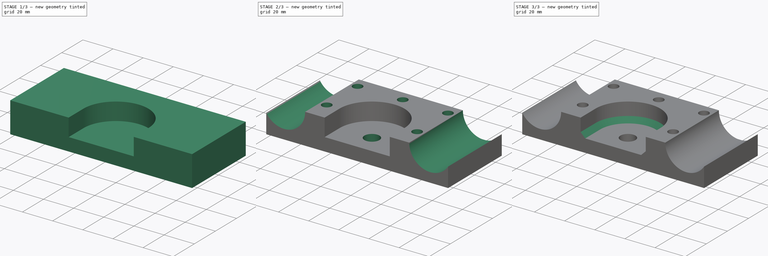
[diagram: build sequence overview — one tinted view per stage of 3, left to right]
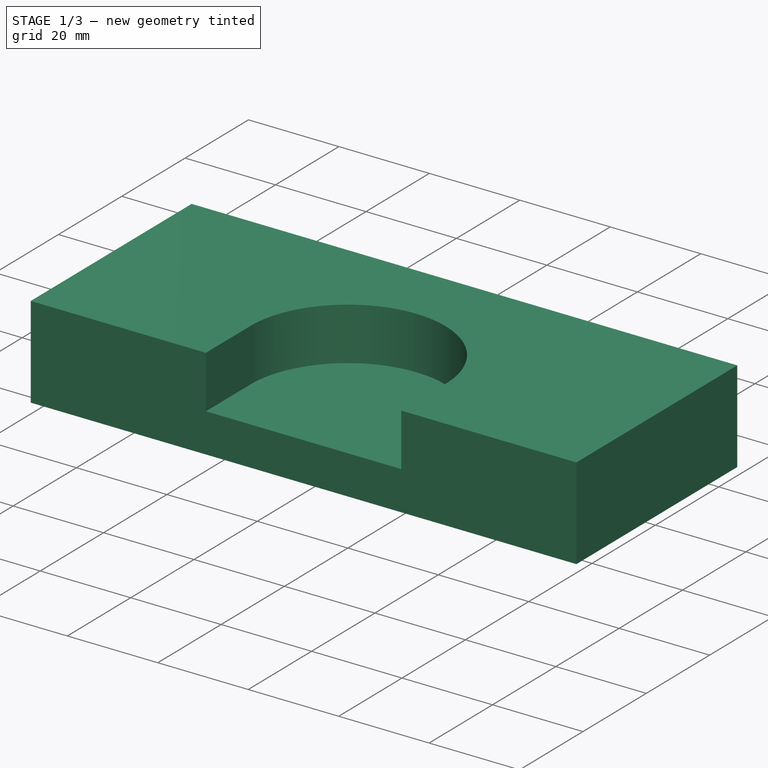
[diagram: stage 1 of 3 — iso view after this stage's code; geometry added in this stage tinted green]
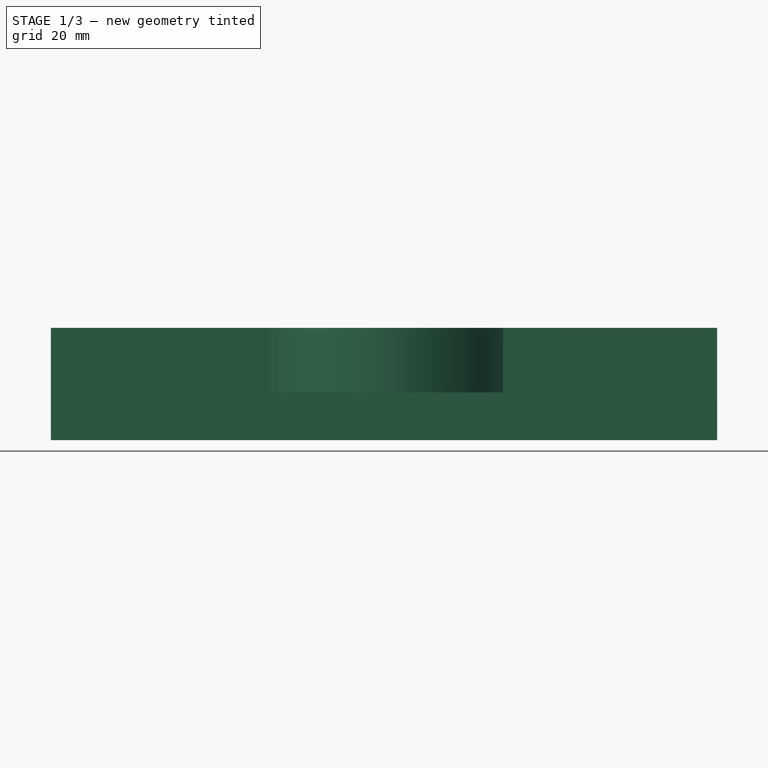
[diagram: stage 1 of 3 — front view after this stage's code; geometry added in this stage tinted green]
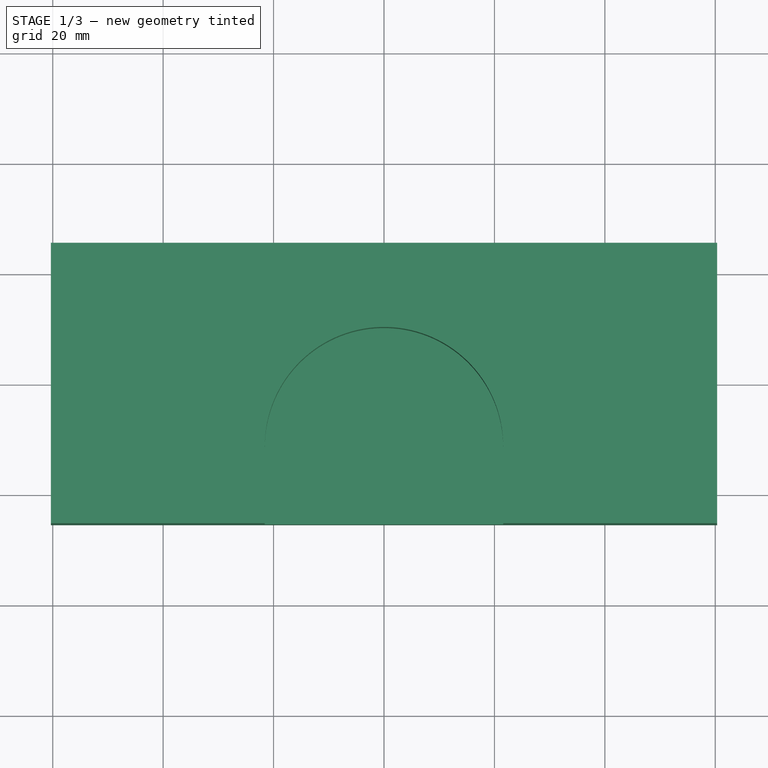
[diagram: stage 1 of 3 — top view after this stage's code; geometry added in this stage tinted green]
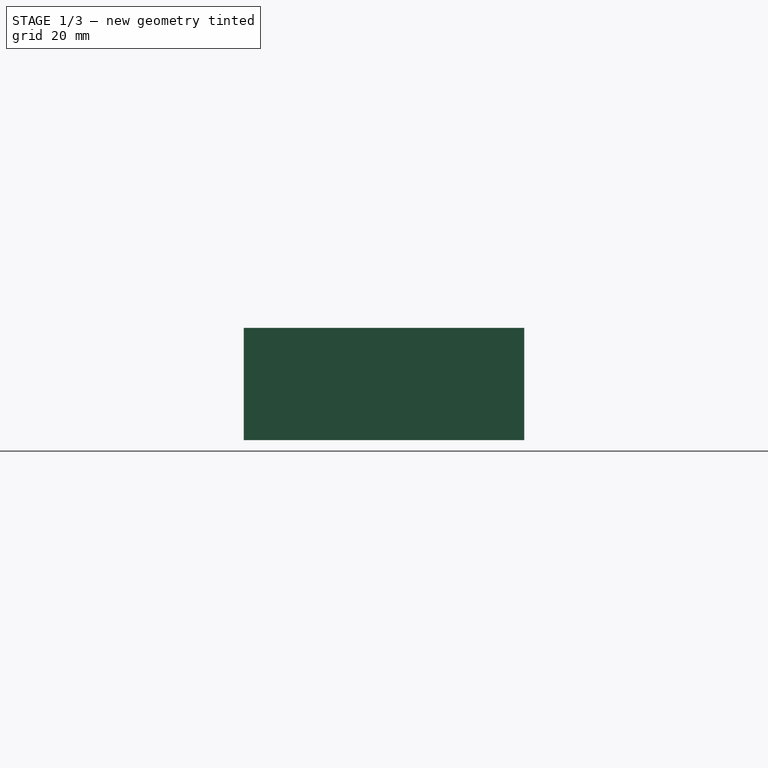
[diagram: stage 1 of 3 — right view after this stage's code; geometry added in this stage tinted green]
FCSTD DOCUMENT  (FreeCAD 0.18R16131 (Git))
Label: TorchIdlerNarrow
License: All rights reserved
LicenseURL: http://en.wikipedia.org/wiki/All_rights_reserved
objects: Sketcher::SketchObject×5, PartDesign::Pocket×4, Spreadsheet::Sheet×1, PartDesign::Pad×1, PartDesign::Chamfer×1
note: 16 computed .brp shape members not serialized (recipe doc carries the construction recipe); baked Part::Feature solids carry a one-line shape summary decoded from their .brp

FEATURE [Spreadsheet::Sheet] Spreadsheet  label="p"
  cells = A1=Description; B1=Dimensions (inches); C1=Dimension (mm); A2=Bushing wall thickness; C2(bushing_wall_th)=2
FEATURE [Sketcher::SketchObject] Sketch  label="IdlerBodySketch"
  MapMode = 5
  Support = -> [XY_Plane]
  sketch-geometry (4):
    g0: LineSegment StartX=-60.325 StartY=25.4 StartZ=0 EndX=60.325 EndY=25.4 EndZ=0
    g1: LineSegment StartX=60.325 StartY=25.4 StartZ=0 EndX=60.325 EndY=-25.4 EndZ=0
    g2: LineSegment StartX=60.325 StartY=-25.4 StartZ=0 EndX=-60.325 EndY=-25.4 EndZ=0
    g3: LineSegment StartX=-60.325 StartY=-25.4 StartZ=0 EndX=-60.325 EndY=25.4 EndZ=0
  constraints (10):
    c: Coincident(g0,g1)
    c: Coincident(g1,g2)
    c: Coincident(g2,g3)
    c: Coincident(g3,g0)
    c: Horizontal(g2)
    c: Vertical(g1)
    c: Symmetric(g0,g0,g-2)
    c: Symmetric(g0,g2,g-1)
    c: DistanceX(g0,g0) = 120.65
    c: DistanceY(g1,g1) = 50.8
FEATURE [PartDesign::Pad] Pad  label="IdlerBodyPad"
  Length = 20.32
  Length2 = 100.076
  Profile = -> Sketch
  Type = 0
FEATURE [Sketcher::SketchObject] Sketch001  label="BeltGrooveSketch"
  ExternalGeometry = -> [Pad]
  MapMode = 5
  Placement = pos=(0,0,20.32) rot=(0,0,1;0rad)
  Support = -> [Pad]
  sketch-geometry (5):
    g0: LineSegment StartX=21.59 StartY=-11.43 StartZ=0 EndX=21.59 EndY=-25.4 EndZ=0
    g1: LineSegment StartX=21.59 StartY=-25.4 StartZ=0 EndX=-21.59 EndY=-25.4 EndZ=0
    g2: LineSegment StartX=-21.59 StartY=-25.4 StartZ=0 EndX=-21.59 EndY=-11.43 EndZ=0
    g3: GeomPoint X=5.477e-13 Y=10.16 Z=0
    g4: ArcOfCircle CenterX=5.3018e-12 CenterY=-11.43 CenterZ=0 NormalX=0 NormalY=0 NormalZ=1 AngleXU=0 Radius=21.59 StartAngle=4.9606e-12 EndAngle=3.14159
  constraints (14):
    c: Coincident(g0,g1)
    c: Coincident(g1,g2)
    c: Horizontal(g1)
    c: Vertical(g0)
    c: Vertical(g2)
    c: DistanceX(g2,g0) = 43.18
    c: Symmetric(g2,g0,g-2)
    c: Horizontal(g1,g-3)
    c: PointOnObject(g3,g-2)
    c: DistanceY(g3,g-4) = 15.24
    c: PointOnObject(g3,g4)
    c: Coincident(g0,g4)
    c: Coincident(g2,g4)
    c: Horizontal(g2,g4)
FEATURE [PartDesign::Pocket] Pocket  label="BeltGroovePocket"
  BaseFeature = -> Pad
  Length = 11.684
  Length2 = 100.076
  Profile = -> Sketch001
  Type = 0
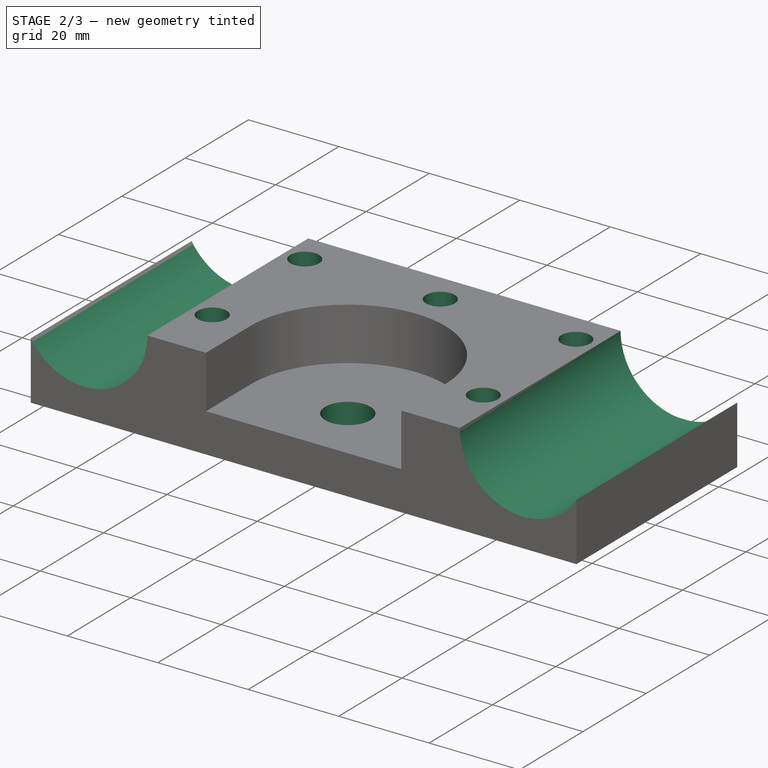
[diagram: stage 2 of 3 — iso view after this stage's code; geometry added in this stage tinted green]
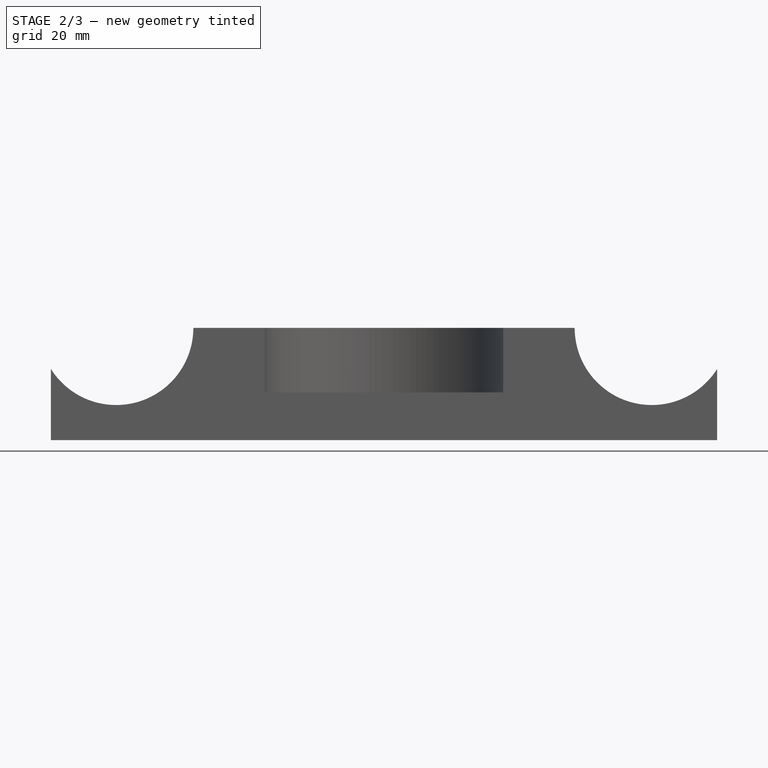
[diagram: stage 2 of 3 — front view after this stage's code; geometry added in this stage tinted green]
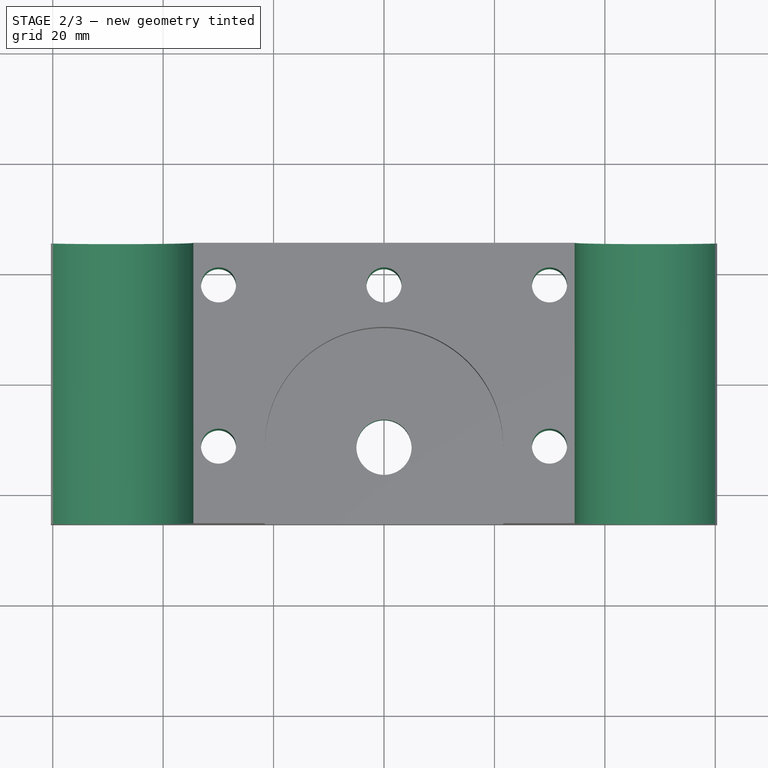
[diagram: stage 2 of 3 — top view after this stage's code; geometry added in this stage tinted green]
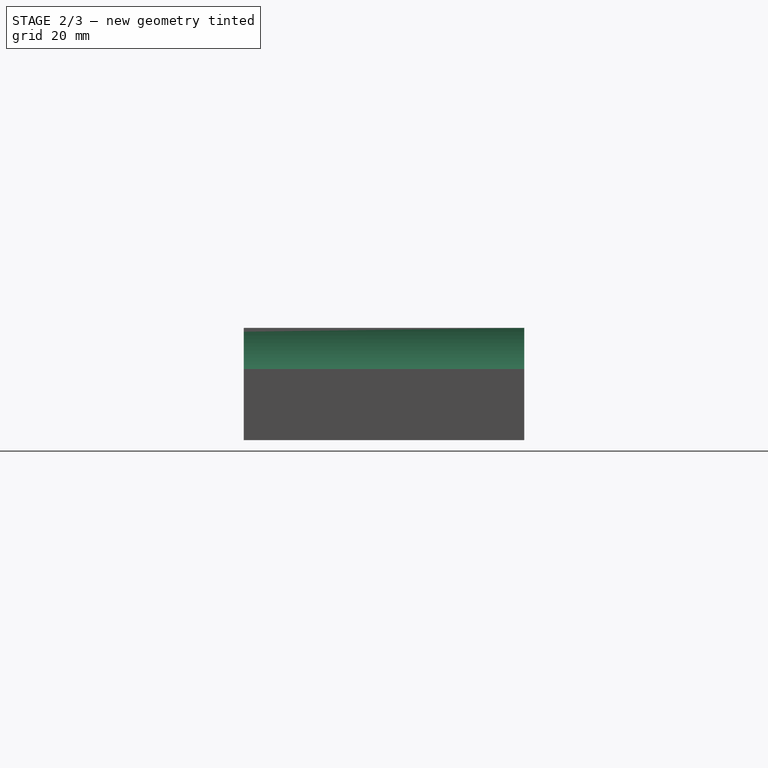
[diagram: stage 2 of 3 — right view after this stage's code; geometry added in this stage tinted green]
FEATURE [Sketcher::SketchObject] Sketch002  label="1inRodSketch"
  ExternalGeometry = -> [Pocket]
  MapMode = 5
  Placement = pos=(0,-25.4,0) rot=(1,0,0;1.5708rad)
  Support = -> [Pocket]
  sketch-geometry (2):
    g0: Circle CenterX=48.5013 CenterY=20.32 CenterZ=0 NormalX=0 NormalY=0 NormalZ=1 AngleXU=0 Radius=13.97
    g1: Circle CenterX=-48.5013 CenterY=20.32 CenterZ=0 NormalX=0 NormalY=0 NormalZ=1 AngleXU=0 Radius=13.97
  constraints (5):
    c: Radius(g0) = 13.97
    c: Horizontal(g-3,g0)
    c: Equal(g0,g1)
    c: Symmetric(g1,g0,g-2)
    c: DistanceX(g1,g0) = 97.0026
FEATURE [PartDesign::Pocket] Pocket001  label="1inRodPocket"
  BaseFeature = -> Pocket
  Length = 5.08
  Length2 = 100.076
  Profile = -> Sketch002
  Type = 1
FEATURE [Sketcher::SketchObject] Sketch003  label="BoltHolesSketch"
  ExternalGeometry = -> [Pocket001]
  MapMode = 5
  Placement = pos=(0,0,20.32) rot=(0,0,1;0rad)
  Support = -> [Pocket001]
  expr: Constraints[14] = 3 + p.bushing_wall_th
  sketch-geometry (6):
    g0: Circle CenterX=-29.972 CenterY=17.78 CenterZ=0 NormalX=0 NormalY=0 NormalZ=1 AngleXU=0 Radius=3.175
    g1: Circle CenterX=-1.584e-13 CenterY=17.78 CenterZ=0 NormalX=0 NormalY=0 NormalZ=1 AngleXU=0 Radius=3.175
    g2: Circle CenterX=29.972 CenterY=17.78 CenterZ=0 NormalX=0 NormalY=0 NormalZ=1 AngleXU=0 Radius=3.175
    g3: Circle CenterX=-29.972 CenterY=-11.43 CenterZ=0 NormalX=0 NormalY=0 NormalZ=1 AngleXU=0 Radius=3.175
    g4: Circle CenterX=5.3018e-12 CenterY=-11.43 CenterZ=0 NormalX=0 NormalY=0 NormalZ=1 AngleXU=0 Radius=5
    g5: Circle CenterX=29.972 CenterY=-11.43 CenterZ=0 NormalX=0 NormalY=0 NormalZ=1 AngleXU=0 Radius=3.175
  constraints (15):
    c: Radius(g5) = 3.175
    c: Equal(g5,g2)
    c: Equal(g5,g1)
    c: Equal(g5,g3)
    c: Equal(g5,g0)
    c: Horizontal(g5,g4)
    c: Horizontal(g0,g1)
    c: Vertical(g1,g-1)
    c: Symmetric(g0,g2,g-2)
    c: Symmetric(g3,g5,g-2)
    c: Coincident(g4,g-3)
    c: Vertical(g3,g0)
    c: DistanceY(g1,g-4) = 7.62
    c: DistanceX(g0,g1) = 29.972
    c: Radius(g4) = 5
FEATURE [PartDesign::Pocket] Pocket002  label="BoltHolesPocket"
  BaseFeature = -> Pocket001
  Length = 5.08
  Length2 = 100.076
  Profile = -> Sketch003
  Type = 1
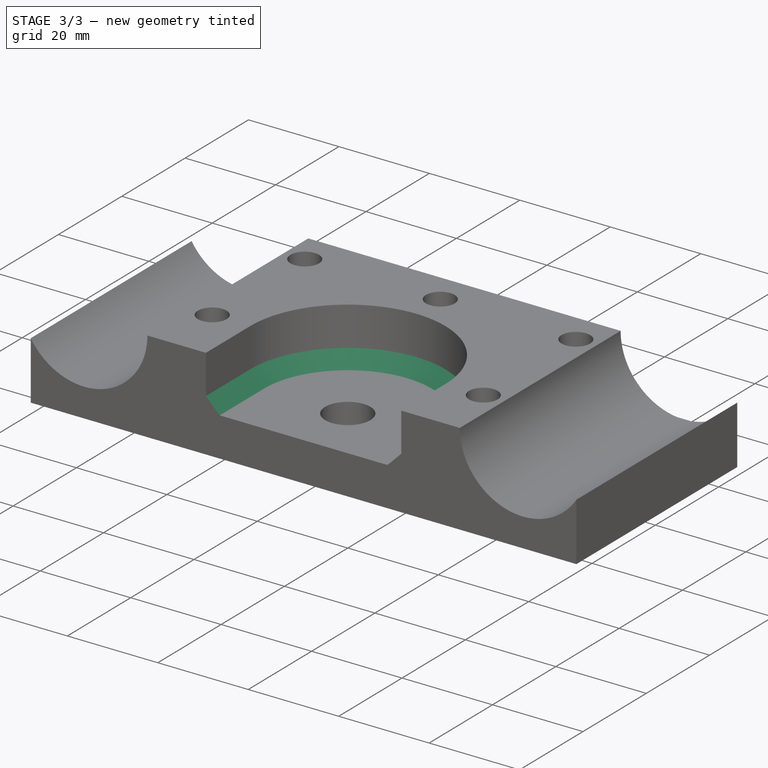
[diagram: stage 3 of 3 — iso view after this stage's code; geometry added in this stage tinted green]
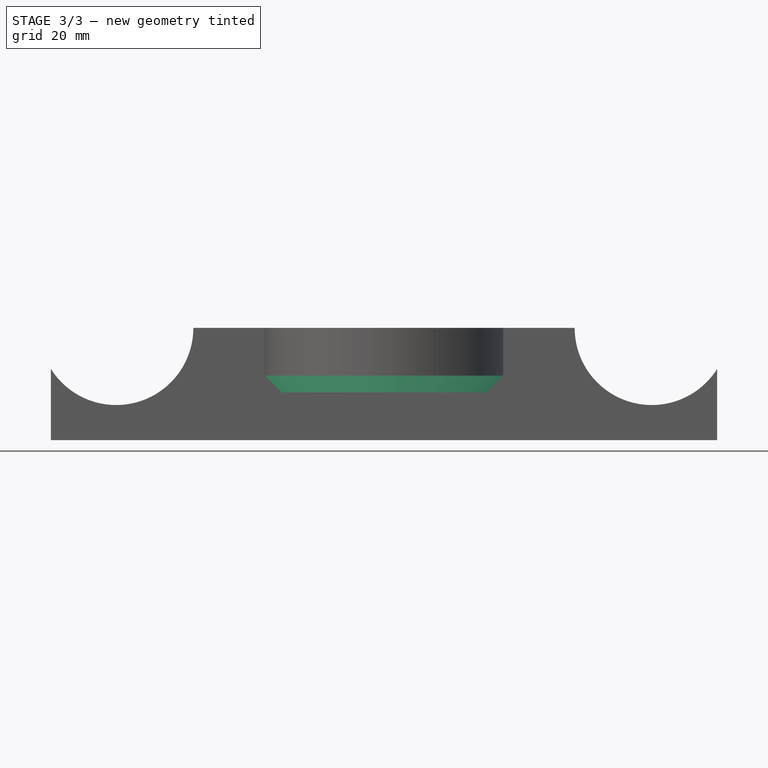
[diagram: stage 3 of 3 — front view after this stage's code; geometry added in this stage tinted green]
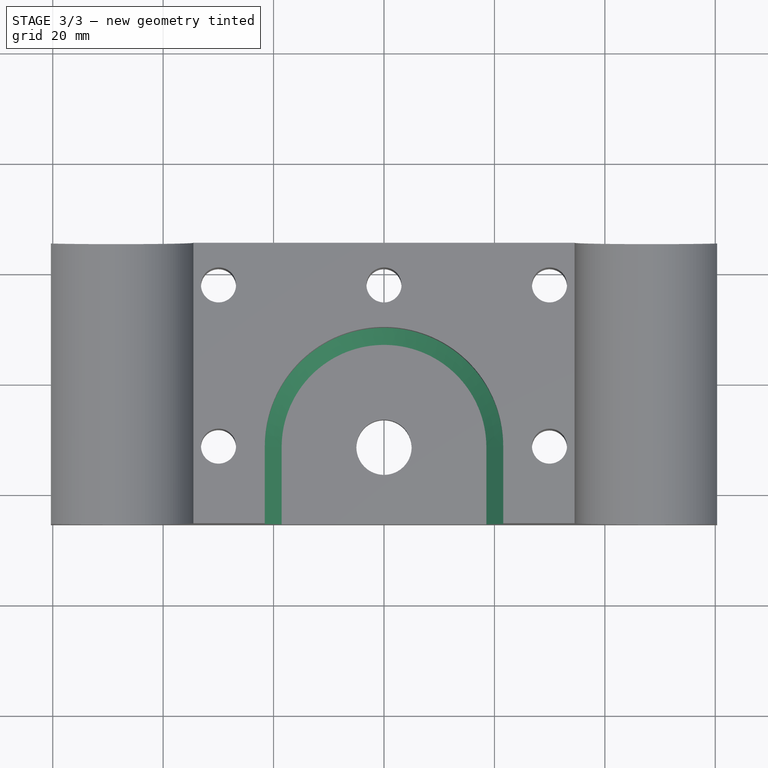
[diagram: stage 3 of 3 — top view after this stage's code; geometry added in this stage tinted green]
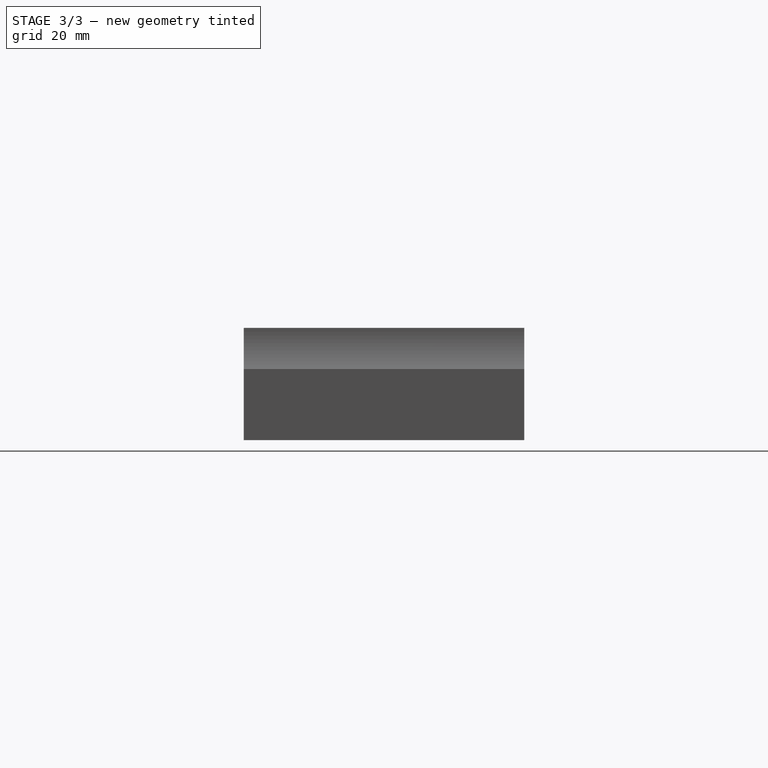
[diagram: stage 3 of 3 — right view after this stage's code; geometry added in this stage tinted green]
FEATURE [Sketcher::SketchObject] Sketch004  label="FlangeBearingSketch"
  ExternalGeometry = -> [Pocket002]
  MapMode = 5
  Placement = pos=(0,0,0) rot=(1,0,0;3.14159rad)
  Support = -> [Pocket002]
  sketch-geometry (1):
    g0: Circle CenterX=5.3018e-12 CenterY=11.43 CenterZ=0 NormalX=0 NormalY=0 NormalZ=1 AngleXU=0 Radius=6.25
  constraints (2):
    c: Radius(g0) = 6.25
    c: Coincident(g0,g-3)
FEATURE [PartDesign::Pocket] Pocket003  label="FlangeBearingPocket"
  BaseFeature = -> Pocket002
  Length = 3.556
  Length2 = 100.076
  Profile = -> Sketch004
  Type = 0
FEATURE [PartDesign::Chamfer] Chamfer
  Base = -> Pocket003 [Edge49]
  BaseFeature = -> Pocket003
  Size = 3.048
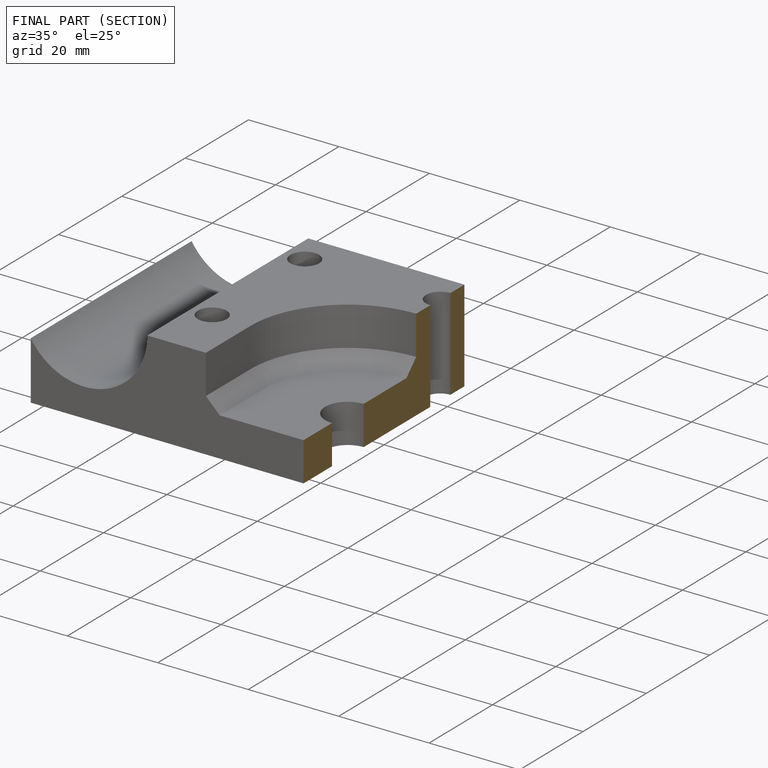
[diagram: finished part — half-section view (interior)]
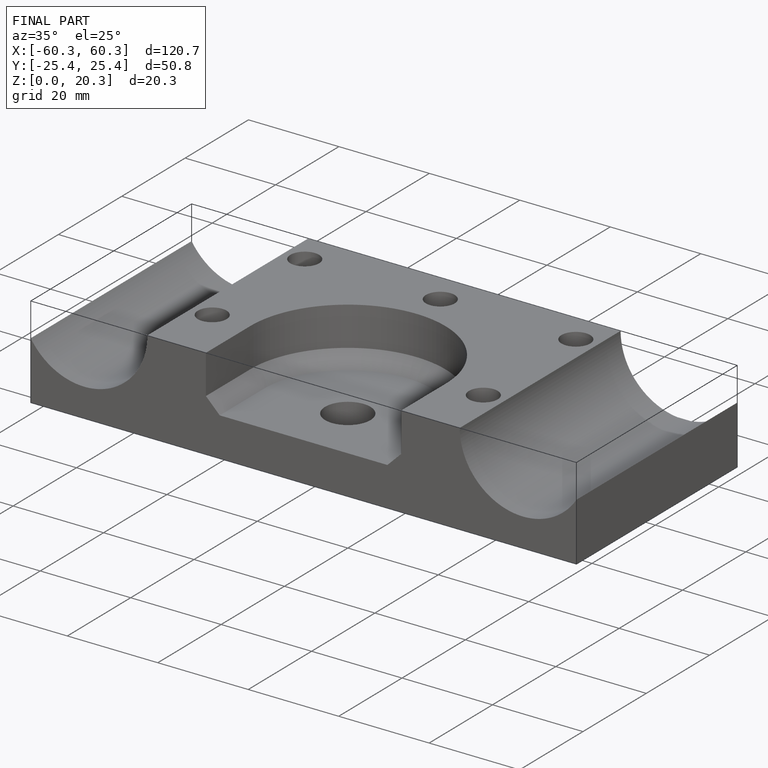
[diagram: finished part — iso view with bounding-box wireframe]
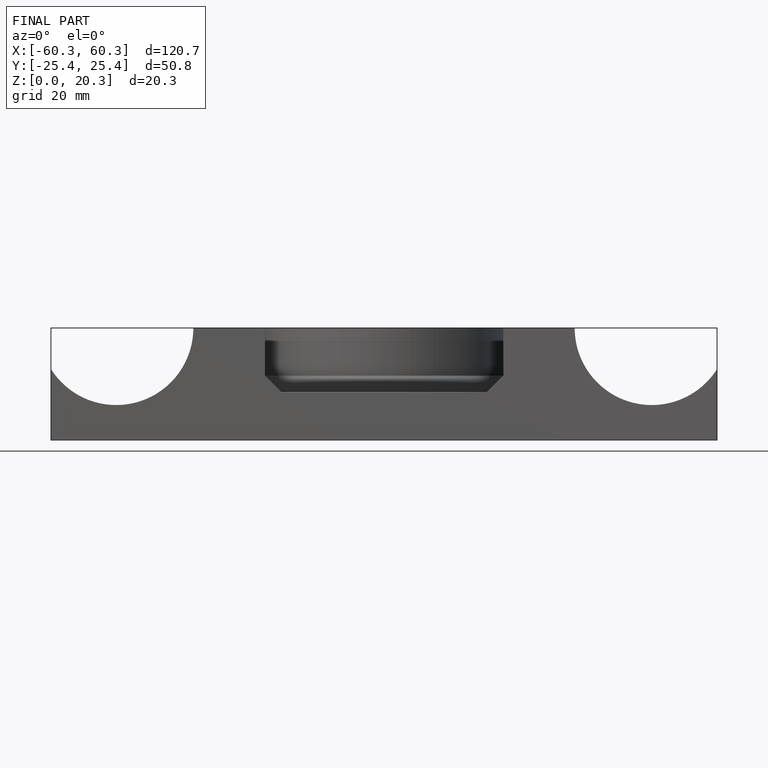
[diagram: finished part — front view with bounding-box wireframe]
